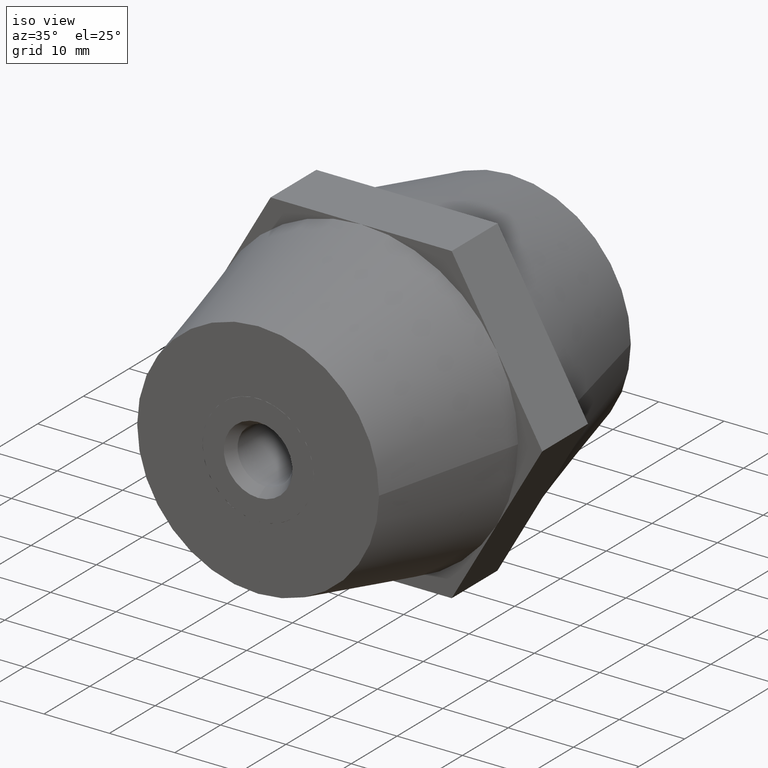
[diagram: clean part render]
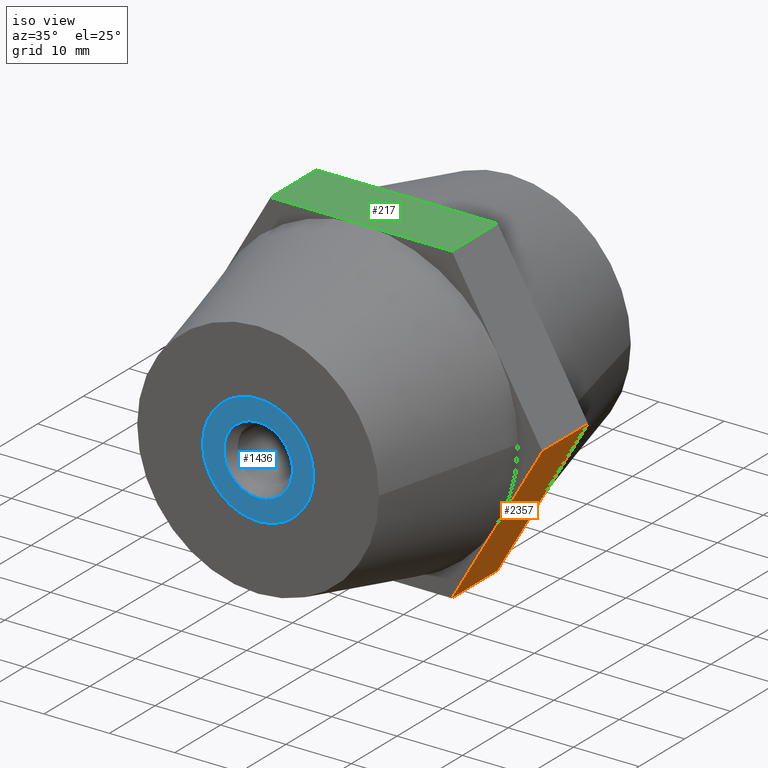
[diagram: same view with three faces highlighted in distinct colors, each labeled with its STEP entity id]
A machine part, iso view with three faces highlighted in distinct colors.
Their STEP definitions:

[orange] entity #2357 — the highlighted planar face has unit normal (-0.866, 0, 0.5).
#23 = DIRECTION ( 'NONE',  ( -0.4999999999999998900, 0.0000000000000000000, -0.8660254037844387100 ) ) ;
#196 = ORIENTED_EDGE ( 'NONE', *, *, #1106, .T. ) ;
#215 = CARTESIAN_POINT ( 'NONE',  ( 27.71281292110205300, -5.000000000000000000, -3.620861245507129500E-015 ) ) ;
#226 = ORIENTED_EDGE ( 'NONE', *, *, #3025, .T. ) ;
#246 = CARTESIAN_POINT ( 'NONE',  ( 27.71281292110205300, 5.000000000000000000, -3.620861245507129500E-015 ) ) ;
#313 = CARTESIAN_POINT ( 'NONE',  ( 13.85640646055100000, 5.000000000000000000, -24.00000000000000000 ) ) ;
#430 = VERTEX_POINT ( 'NONE', #3766 ) ;
#527 = ORIENTED_EDGE ( 'NONE', *, *, #1473, .F. ) ;
#539 = DIRECTION ( 'NONE',  ( 0.0000000000000000000, -1.000000000000000000, 0.0000000000000000000 ) ) ;
#568 = EDGE_LOOP ( 'NONE', ( #3588, #226, #3777, #527, #780, #196 ) ) ;
#709 = DIRECTION ( 'NONE',  ( 0.0000000000000000000, -1.000000000000000000, 0.0000000000000000000 ) ) ;
#756 = DIRECTION ( 'NONE',  ( -0.4999999999999998900, 0.0000000000000000000, -0.8660254037844387100 ) ) ;
#780 = ORIENTED_EDGE ( 'NONE', *, *, #2191, .F. ) ;
#867 = CARTESIAN_POINT ( 'NONE',  ( 20.78460969082655300, -5.000000000000000000, -12.00000000000000000 ) ) ;
#916 = EDGE_CURVE ( 'NONE', #1423, #430, #2269, .T. ) ;
#989 = VERTEX_POINT ( 'NONE', #3210 ) ;
#1106 = EDGE_CURVE ( 'NONE', #989, #3454, #3491, .T. ) ;
#1119 = PLANE ( 'NONE',  #1120 ) ;
#1120 = AXIS2_PLACEMENT_3D ( 'NONE', #246, #3278, #1420 ) ;
#1164 = VECTOR ( 'NONE', #756, 1000.000000000000000 ) ;
#1170 = DIRECTION ( 'NONE',  ( -0.4999999999999998900, 0.0000000000000000000, -0.8660254037844387100 ) ) ;
#1224 = VERTEX_POINT ( 'NONE', #867 ) ;
#1290 = CARTESIAN_POINT ( 'NONE',  ( 27.71281292110205300, -5.000000000000000000, -3.620861245507129500E-015 ) ) ;
#1400 = LINE ( 'NONE', #2795, #2217 ) ;
#1420 = DIRECTION ( 'NONE',  ( 0.4999999999999998900, 0.0000000000000000000, 0.8660254037844387100 ) ) ;
#1423 = VERTEX_POINT ( 'NONE', #313 ) ;
#1473 = EDGE_CURVE ( 'NONE', #1521, #1423, #1400, .T. ) ;
#1485 = CARTESIAN_POINT ( 'NONE',  ( 27.71281292110205300, -5.000000000000000000, -3.620861245507129500E-015 ) ) ;
#1521 = VERTEX_POINT ( 'NONE', #3177 ) ;
#1823 = LINE ( 'NONE', #1290, #2794 ) ;
#1906 = VECTOR ( 'NONE', #1170, 1000.000000000000000 ) ;
#2008 = LINE ( 'NONE', #215, #1906 ) ;
#2191 = EDGE_CURVE ( 'NONE', #989, #1521, #3833, .T. ) ;
#2217 = VECTOR ( 'NONE', #2495, 1000.000000000000000 ) ;
#2269 = LINE ( 'NONE', #2864, #3152 ) ;
#2357 = ADVANCED_FACE ( 'NONE', ( #3638 ), #1119, .F. ) ;
#2495 = DIRECTION ( 'NONE',  ( -0.4999999999999998900, 0.0000000000000000000, -0.8660254037844387100 ) ) ;
#2594 = CARTESIAN_POINT ( 'NONE',  ( 27.71281292110205300, 5.000000000000000000, -3.620861245507129500E-015 ) ) ;
#2666 = CARTESIAN_POINT ( 'NONE',  ( 27.71281292110205300, 5.000000000000000000, -3.620861245507129500E-015 ) ) ;
#2671 = VECTOR ( 'NONE', #539, 1000.000000000000000 ) ;
#2794 = VECTOR ( 'NONE', #23, 1000.000000000000000 ) ;
#2795 = CARTESIAN_POINT ( 'NONE',  ( 27.71281292110205300, 5.000000000000000000, -3.620861245507129500E-015 ) ) ;
#2851 = EDGE_CURVE ( 'NONE', #3454, #1224, #2008, .T. ) ;
#2864 = CARTESIAN_POINT ( 'NONE',  ( 13.85640646055100000, 5.000000000000000000, -24.00000000000000000 ) ) ;
#3025 = EDGE_CURVE ( 'NONE', #1224, #430, #1823, .T. ) ;
#3152 = VECTOR ( 'NONE', #709, 1000.000000000000000 ) ;
#3177 = CARTESIAN_POINT ( 'NONE',  ( 20.78460969082650000, 5.000000000000000000, -12.00000000000000000 ) ) ;
#3210 = CARTESIAN_POINT ( 'NONE',  ( 27.71281292110205300, 5.000000000000000000, -3.620861245507129500E-015 ) ) ;
#3278 = DIRECTION ( 'NONE',  ( -0.8660254037844387100, 0.0000000000000000000, 0.4999999999999998900 ) ) ;
#3454 = VERTEX_POINT ( 'NONE', #1485 ) ;
#3491 = LINE ( 'NONE', #2666, #2671 ) ;
#3588 = ORIENTED_EDGE ( 'NONE', *, *, #2851, .T. ) ;
#3638 = FACE_OUTER_BOUND ( 'NONE', #568, .T. ) ;
#3766 = CARTESIAN_POINT ( 'NONE',  ( 13.85640646055100000, -5.000000000000000000, -24.00000000000000000 ) ) ;
#3777 = ORIENTED_EDGE ( 'NONE', *, *, #916, .F. ) ;
#3833 = LINE ( 'NONE', #2594, #1164 ) ;

[blue] entity #1436 — the highlighted planar face has unit normal (-0, -1, 0).
#30 = VERTEX_POINT ( 'NONE', #1177 ) ;
#122 = FACE_BOUND ( 'NONE', #180, .T. ) ;
#143 = DIRECTION ( 'NONE',  ( 0.0000000000000000000, 0.0000000000000000000, 1.000000000000000000 ) ) ;
#180 = EDGE_LOOP ( 'NONE', ( #1931, #3163 ) ) ;
#213 = CARTESIAN_POINT ( 'NONE',  ( 4.250000000000000000, 17.00000000000000000, -7.361215932167730200 ) ) ;
#286 = CARTESIAN_POINT ( 'NONE',  ( -8.500000000000000000, 17.00000000000000000, 0.0000000000000000000 ) ) ;
#290 = ORIENTED_EDGE ( 'NONE', *, *, #553, .F. ) ;
#320 = DIRECTION ( 'NONE',  ( 0.0000000000000000000, 1.000000000000000000, 0.0000000000000000000 ) ) ;
#355 = DIRECTION ( 'NONE',  ( 0.0000000000000000000, 0.0000000000000000000, 1.000000000000000000 ) ) ;
#366 = CARTESIAN_POINT ( 'NONE',  ( 0.0000000000000000000, 17.00000000000000000, 0.0000000000000000000 ) ) ;
#404 = ORIENTED_EDGE ( 'NONE', *, *, #2368, .F. ) ;
#483 = CARTESIAN_POINT ( 'NONE',  ( 0.0000000000000000000, 17.00000000000000000, 0.0000000000000000000 ) ) ;
#524 = DIRECTION ( 'NONE',  ( 0.0000000000000000000, 0.0000000000000000000, 1.000000000000000000 ) ) ;
#553 = EDGE_CURVE ( 'NONE', #2452, #1314, #3205, .T. ) ;
#590 = CARTESIAN_POINT ( 'NONE',  ( -4.250000000000000000, 17.00000000000000000, -7.361215932167730200 ) ) ;
#666 = ORIENTED_EDGE ( 'NONE', *, *, #1765, .F. ) ;
#697 = ORIENTED_EDGE ( 'NONE', *, *, #1522, .F. ) ;
#700 = CARTESIAN_POINT ( 'NONE',  ( 0.0000000000000000000, 17.00000000000000000, 0.0000000000000000000 ) ) ;
#751 = CARTESIAN_POINT ( 'NONE',  ( 0.0000000000000000000, 17.00000000000000000, 0.0000000000000000000 ) ) ;
#830 = EDGE_CURVE ( 'NONE', #2135, #30, #1939, .T. ) ;
#889 = CIRCLE ( 'NONE', #3684, 8.500000000000000000 ) ;
#968 = CARTESIAN_POINT ( 'NONE',  ( 0.0000000000000000000, 17.00000000000000000, 5.250000000000000000 ) ) ;
#1082 = CARTESIAN_POINT ( 'NONE',  ( -4.250000000000000000, 17.00000000000000000, 7.361215932167730200 ) ) ;
#1095 = DIRECTION ( 'NONE',  ( -0.0000000000000000000, -1.000000000000000000, -0.0000000000000000000 ) ) ;
#1177 = CARTESIAN_POINT ( 'NONE',  ( 6.429395695523604200E-016, 17.00000000000000000, -5.250000000000000000 ) ) ;
#1226 = DIRECTION ( 'NONE',  ( 0.0000000000000000000, 0.0000000000000000000, 1.000000000000000000 ) ) ;
#1262 = DIRECTION ( 'NONE',  ( -0.0000000000000000000, -1.000000000000000000, -0.0000000000000000000 ) ) ;
#1293 = CARTESIAN_POINT ( 'NONE',  ( 0.0000000000000000000, 17.00000000000000000, 0.0000000000000000000 ) ) ;
#1314 = VERTEX_POINT ( 'NONE', #590 ) ;
#1316 = EDGE_CURVE ( 'NONE', #30, #2135, #3863, .T. ) ;
#1395 = AXIS2_PLACEMENT_3D ( 'NONE', #3468, #2583, #1606 ) ;
#1436 = ADVANCED_FACE ( 'NONE', ( #2664, #122 ), #1540, .T. ) ;
#1522 = EDGE_CURVE ( 'NONE', #1733, #2452, #2457, .T. ) ;
#1540 = PLANE ( 'NONE',  #1545 ) ;
#1545 = AXIS2_PLACEMENT_3D ( 'NONE', #3745, #2769, #3382 ) ;
#1579 = AXIS2_PLACEMENT_3D ( 'NONE', #366, #1917, #1904 ) ;
#1606 = DIRECTION ( 'NONE',  ( -1.776356839400250500E-015, 0.0000000000000000000, 1.000000000000000000 ) ) ;
#1675 = EDGE_CURVE ( 'NONE', #1796, #3692, #3956, .T. ) ;
#1733 = VERTEX_POINT ( 'NONE', #1082 ) ;
#1748 = VERTEX_POINT ( 'NONE', #3226 ) ;
#1765 = EDGE_CURVE ( 'NONE', #1748, #1733, #2717, .T. ) ;
#1796 = VERTEX_POINT ( 'NONE', #213 ) ;
#1818 = CIRCLE ( 'NONE', #1579, 8.500000000000000000 ) ;
#1860 = AXIS2_PLACEMENT_3D ( 'NONE', #751, #1962, #143 ) ;
#1888 = CIRCLE ( 'NONE', #3958, 8.500000000000000000 ) ;
#1904 = DIRECTION ( 'NONE',  ( 2.664535259100376100E-015, 0.0000000000000000000, 1.000000000000000000 ) ) ;
#1917 = DIRECTION ( 'NONE',  ( -0.0000000000000000000, -1.000000000000000000, -0.0000000000000000000 ) ) ;
#1931 = ORIENTED_EDGE ( 'NONE', *, *, #830, .F. ) ;
#1939 = CIRCLE ( 'NONE', #1860, 5.250000000000000000 ) ;
#1960 = AXIS2_PLACEMENT_3D ( 'NONE', #3013, #3287, #524 ) ;
#1962 = DIRECTION ( 'NONE',  ( 0.0000000000000000000, 1.000000000000000000, 0.0000000000000000000 ) ) ;
#2081 = ORIENTED_EDGE ( 'NONE', *, *, #1675, .F. ) ;
#2108 = EDGE_CURVE ( 'NONE', #3052, #1796, #889, .T. ) ;
#2115 = CARTESIAN_POINT ( 'NONE',  ( 0.0000000000000000000, 17.00000000000000000, 0.0000000000000000000 ) ) ;
#2135 = VERTEX_POINT ( 'NONE', #968 ) ;
#2290 = DIRECTION ( 'NONE',  ( 0.0000000000000000000, 0.0000000000000000000, 1.000000000000000000 ) ) ;
#2368 = EDGE_CURVE ( 'NONE', #3692, #1748, #1888, .T. ) ;
#2452 = VERTEX_POINT ( 'NONE', #286 ) ;
#2457 = CIRCLE ( 'NONE', #2728, 8.500000000000000000 ) ;
#2475 = EDGE_LOOP ( 'NONE', ( #697, #666, #404, #2081, #2882, #3840, #290 ) ) ;
#2551 = DIRECTION ( 'NONE',  ( 0.0000000000000000000, 0.0000000000000000000, 1.000000000000000000 ) ) ;
#2583 = DIRECTION ( 'NONE',  ( -0.0000000000000000000, -1.000000000000000000, -0.0000000000000000000 ) ) ;
#2664 = FACE_OUTER_BOUND ( 'NONE', #2475, .T. ) ;
#2717 = CIRCLE ( 'NONE', #1960, 8.500000000000000000 ) ;
#2728 = AXIS2_PLACEMENT_3D ( 'NONE', #1293, #3767, #2551 ) ;
#2769 = DIRECTION ( 'NONE',  ( 0.0000000000000000000, 1.000000000000000000, 0.0000000000000000000 ) ) ;
#2882 = ORIENTED_EDGE ( 'NONE', *, *, #2108, .F. ) ;
#2896 = CARTESIAN_POINT ( 'NONE',  ( 0.0000000000000000000, 17.00000000000000000, -8.500000000000001800 ) ) ;
#2947 = CARTESIAN_POINT ( 'NONE',  ( 0.0000000000000000000, 17.00000000000000000, 0.0000000000000000000 ) ) ;
#2963 = DIRECTION ( 'NONE',  ( 3.552713678800500900E-015, 0.0000000000000000000, 1.000000000000000000 ) ) ;
#3013 = CARTESIAN_POINT ( 'NONE',  ( 0.0000000000000000000, 17.00000000000000000, 0.0000000000000000000 ) ) ;
#3052 = VERTEX_POINT ( 'NONE', #2896 ) ;
#3163 = ORIENTED_EDGE ( 'NONE', *, *, #1316, .F. ) ;
#3205 = CIRCLE ( 'NONE', #3321, 8.500000000000000000 ) ;
#3226 = CARTESIAN_POINT ( 'NONE',  ( 4.250000000000000000, 17.00000000000000000, 7.361215932167730200 ) ) ;
#3287 = DIRECTION ( 'NONE',  ( -0.0000000000000000000, -1.000000000000000000, -0.0000000000000000000 ) ) ;
#3321 = AXIS2_PLACEMENT_3D ( 'NONE', #483, #3538, #2290 ) ;
#3382 = DIRECTION ( 'NONE',  ( 0.0000000000000000000, 0.0000000000000000000, 1.000000000000000000 ) ) ;
#3427 = CARTESIAN_POINT ( 'NONE',  ( 8.500000000000000000, 17.00000000000000000, -3.004629197474319600E-015 ) ) ;
#3468 = CARTESIAN_POINT ( 'NONE',  ( 0.0000000000000000000, 17.00000000000000000, 0.0000000000000000000 ) ) ;
#3538 = DIRECTION ( 'NONE',  ( -0.0000000000000000000, -1.000000000000000000, -0.0000000000000000000 ) ) ;
#3684 = AXIS2_PLACEMENT_3D ( 'NONE', #700, #1262, #355 ) ;
#3692 = VERTEX_POINT ( 'NONE', #3427 ) ;
#3745 = CARTESIAN_POINT ( 'NONE',  ( 0.0000000000000000000, 17.00000000000000000, 0.0000000000000000000 ) ) ;
#3767 = DIRECTION ( 'NONE',  ( -0.0000000000000000000, -1.000000000000000000, -0.0000000000000000000 ) ) ;
#3825 = EDGE_CURVE ( 'NONE', #1314, #3052, #1818, .T. ) ;
#3829 = AXIS2_PLACEMENT_3D ( 'NONE', #2115, #320, #1226 ) ;
#3840 = ORIENTED_EDGE ( 'NONE', *, *, #3825, .F. ) ;
#3863 = CIRCLE ( 'NONE', #3829, 5.250000000000000000 ) ;
#3956 = CIRCLE ( 'NONE', #1395, 8.500000000000000000 ) ;
#3958 = AXIS2_PLACEMENT_3D ( 'NONE', #2947, #1095, #2963 ) ;

[green] entity #217 — the highlighted planar face has unit normal (0, 0, -1).
#89 = FACE_OUTER_BOUND ( 'NONE', #711, .T. ) ;
#217 = ADVANCED_FACE ( 'NONE', ( #89 ), #1243, .F. ) ;
#265 = CARTESIAN_POINT ( 'NONE',  ( -13.85640646055101900, 5.000000000000000000, 24.00000000000000000 ) ) ;
#297 = CARTESIAN_POINT ( 'NONE',  ( 4.476762181554124600E-016, -5.000000000000000000, 24.00000000000000000 ) ) ;
#412 = VERTEX_POINT ( 'NONE', #2766 ) ;
#611 = VERTEX_POINT ( 'NONE', #3445 ) ;
#657 = LINE ( 'NONE', #265, #1986 ) ;
#670 = DIRECTION ( 'NONE',  ( -1.000000000000000000, 0.0000000000000000000, -1.251928832280965700E-016 ) ) ;
#711 = EDGE_LOOP ( 'NONE', ( #2547, #3774, #1707, #2272, #1941, #1221 ) ) ;
#959 = AXIS2_PLACEMENT_3D ( 'NONE', #3732, #1253, #670 ) ;
#1004 = VECTOR ( 'NONE', #2301, 1000.000000000000000 ) ;
#1202 = LINE ( 'NONE', #3478, #3385 ) ;
#1221 = ORIENTED_EDGE ( 'NONE', *, *, #3190, .T. ) ;
#1243 = PLANE ( 'NONE',  #959 ) ;
#1253 = DIRECTION ( 'NONE',  ( 1.251928832280965700E-016, 0.0000000000000000000, -1.000000000000000000 ) ) ;
#1650 = EDGE_CURVE ( 'NONE', #1870, #2432, #1202, .T. ) ;
#1687 = VECTOR ( 'NONE', #2683, 1000.000000000000000 ) ;
#1707 = ORIENTED_EDGE ( 'NONE', *, *, #1778, .F. ) ;
#1772 = CARTESIAN_POINT ( 'NONE',  ( -13.85640646055101900, -5.000000000000000000, 24.00000000000000000 ) ) ;
#1778 = EDGE_CURVE ( 'NONE', #3161, #611, #3333, .T. ) ;
#1870 = VERTEX_POINT ( 'NONE', #1772 ) ;
#1924 = DIRECTION ( 'NONE',  ( 1.000000000000000000, 0.0000000000000000000, 1.251928832280965700E-016 ) ) ;
#1934 = EDGE_CURVE ( 'NONE', #2090, #3161, #657, .T. ) ;
#1941 = ORIENTED_EDGE ( 'NONE', *, *, #3131, .F. ) ;
#1950 = CARTESIAN_POINT ( 'NONE',  ( 13.85640646055101900, 5.000000000000000000, 24.00000000000000000 ) ) ;
#1986 = VECTOR ( 'NONE', #3596, 1000.000000000000000 ) ;
#2090 = VERTEX_POINT ( 'NONE', #2216 ) ;
#2216 = CARTESIAN_POINT ( 'NONE',  ( -4.588507153800969100E-015, 5.000000000000000000, 24.00000000000000000 ) ) ;
#2250 = CARTESIAN_POINT ( 'NONE',  ( -13.85640646055101900, 5.000000000000000000, 24.00000000000000000 ) ) ;
#2272 = ORIENTED_EDGE ( 'NONE', *, *, #1934, .F. ) ;
#2301 = DIRECTION ( 'NONE',  ( 0.0000000000000000000, -1.000000000000000000, 0.0000000000000000000 ) ) ;
#2328 = CARTESIAN_POINT ( 'NONE',  ( -13.85640646055101900, 5.000000000000000000, 24.00000000000000000 ) ) ;
#2432 = VERTEX_POINT ( 'NONE', #297 ) ;
#2544 = VECTOR ( 'NONE', #2549, 1000.000000000000000 ) ;
#2547 = ORIENTED_EDGE ( 'NONE', *, *, #1650, .T. ) ;
#2549 = DIRECTION ( 'NONE',  ( 1.000000000000000000, 0.0000000000000000000, 1.251928832280965700E-016 ) ) ;
#2663 = CARTESIAN_POINT ( 'NONE',  ( 13.85640646055101900, 5.000000000000000000, 24.00000000000000000 ) ) ;
#2683 = DIRECTION ( 'NONE',  ( 0.0000000000000000000, -1.000000000000000000, 0.0000000000000000000 ) ) ;
#2766 = CARTESIAN_POINT ( 'NONE',  ( -13.85640646055101900, 5.000000000000000000, 24.00000000000000000 ) ) ;
#2948 = EDGE_CURVE ( 'NONE', #2432, #611, #3079, .T. ) ;
#2985 = VECTOR ( 'NONE', #3672, 1000.000000000000000 ) ;
#3079 = LINE ( 'NONE', #3664, #2985 ) ;
#3131 = EDGE_CURVE ( 'NONE', #412, #2090, #3229, .T. ) ;
#3161 = VERTEX_POINT ( 'NONE', #1950 ) ;
#3190 = EDGE_CURVE ( 'NONE', #412, #1870, #3470, .T. ) ;
#3229 = LINE ( 'NONE', #2250, #2544 ) ;
#3333 = LINE ( 'NONE', #2663, #1687 ) ;
#3385 = VECTOR ( 'NONE', #1924, 1000.000000000000000 ) ;
#3445 = CARTESIAN_POINT ( 'NONE',  ( 13.85640646055101900, -5.000000000000000000, 24.00000000000000000 ) ) ;
#3470 = LINE ( 'NONE', #2328, #1004 ) ;
#3478 = CARTESIAN_POINT ( 'NONE',  ( -13.85640646055101900, -5.000000000000000000, 24.00000000000000000 ) ) ;
#3596 = DIRECTION ( 'NONE',  ( 1.000000000000000000, 0.0000000000000000000, 1.251928832280965700E-016 ) ) ;
#3664 = CARTESIAN_POINT ( 'NONE',  ( -13.85640646055101900, -5.000000000000000000, 24.00000000000000000 ) ) ;
#3672 = DIRECTION ( 'NONE',  ( 1.000000000000000000, 0.0000000000000000000, 1.251928832280965700E-016 ) ) ;
#3732 = CARTESIAN_POINT ( 'NONE',  ( -13.85640646055101900, 5.000000000000000000, 24.00000000000000000 ) ) ;
#3774 = ORIENTED_EDGE ( 'NONE', *, *, #2948, .T. ) ;